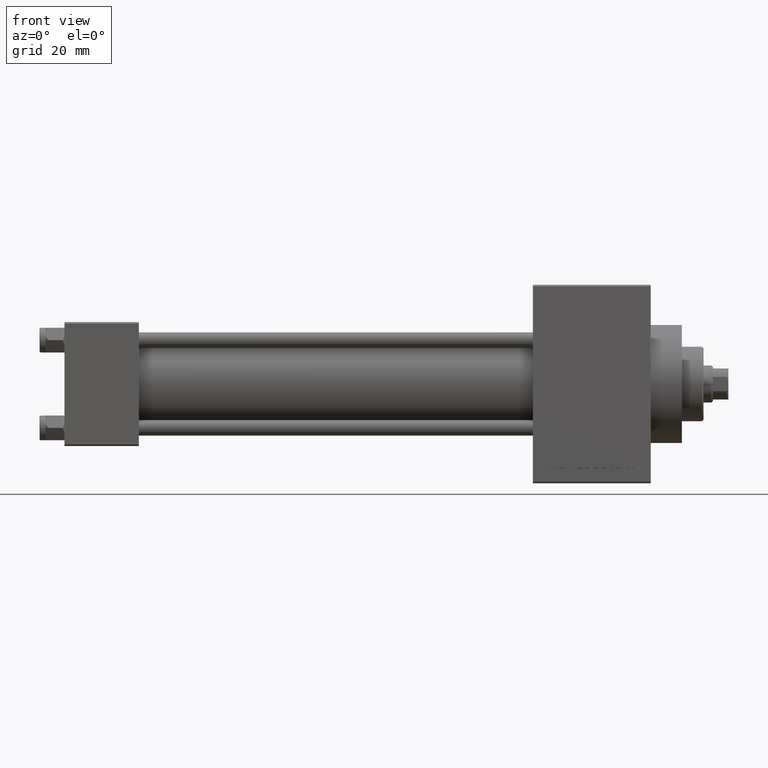
[diagram: clean part render]
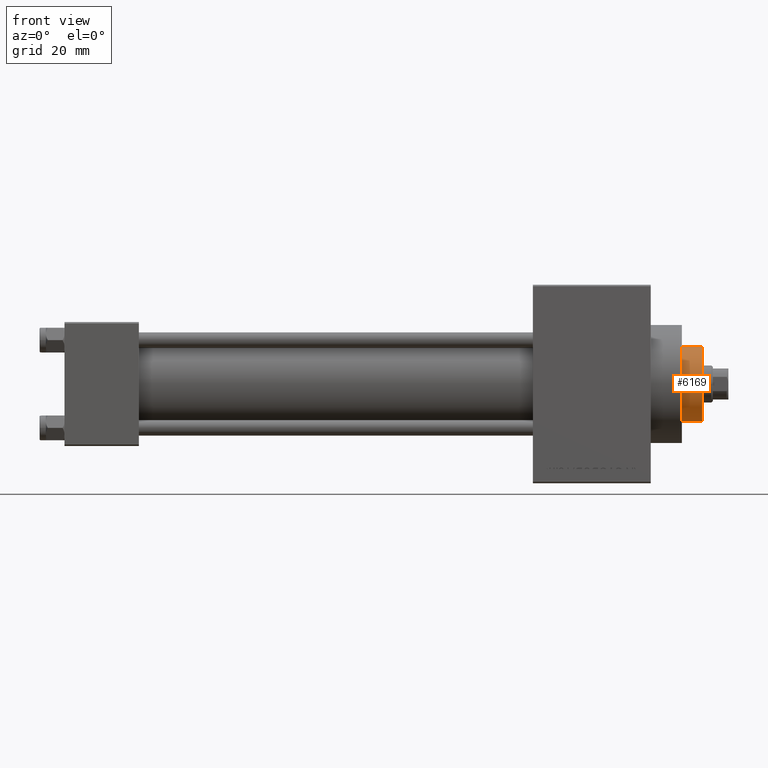
[diagram: same view with one face highlighted and labeled with its STEP entity id]
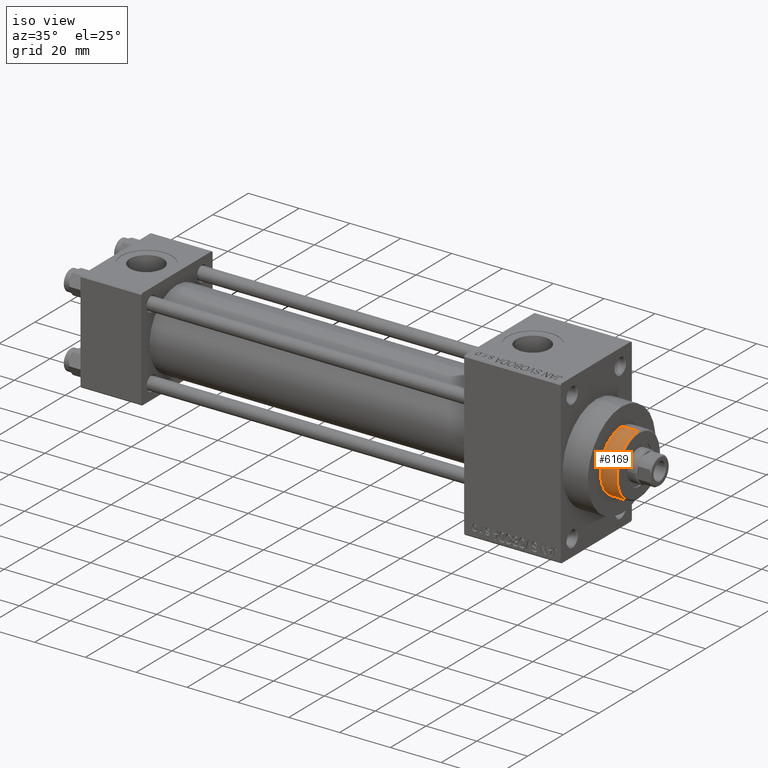
[diagram: same view with one face highlighted and labeled with its STEP entity id]
A machine part, front view. The second image highlights one B-rep face of the part: STEP entity #6169.
A second angle (iso view) of the same face is appended — the face is thin or edge-on in the first view.
In plain terms, the highlighted cylindrical surface (partial cylindrical patch) has radius 12 mm, axis along (-1, 0, 0).
Its self-contained STEP definition (entity closure, byte-faithful):
#1807 = ORIENTED_EDGE ( 'NONE', *, *, #34748, .T. ) ;
#2911 = DIRECTION ( 'NONE',  ( -1.000000000000000000, 0.000000000000000000, 0.000000000000000000 ) ) ;
#3011 = EDGE_CURVE ( 'NONE', #4678, #47378, #18109, .T. ) ;
#4678 = VERTEX_POINT ( 'NONE', #21375 ) ;
#5305 = CARTESIAN_POINT ( 'NONE',  ( 12.00000000000000178, 1.469576158976824144E-15, 43.25999999999999801 ) ) ;
#5588 = CARTESIAN_POINT ( 'NONE',  ( 12.00000000000000178, 1.469576158976824144E-15, 50.25999999999999801 ) ) ;
#5649 = LINE ( 'NONE', #20529, #12464 ) ;
#5655 = CYLINDRICAL_SURFACE ( 'NONE', #30131, 12.00000000000000178 ) ;
#6166 = CARTESIAN_POINT ( 'NONE',  ( 0.000000000000000000, 0.000000000000000000, 43.25999999999999801 ) ) ;
#6169 = ADVANCED_FACE ( 'NONE', ( #39656 ), #5655, .T. ) ;
#11188 = CARTESIAN_POINT ( 'NONE',  ( 12.00000000000000178, 1.469576158976824144E-15, 49.76000000000000512 ) ) ;
#11565 = CIRCLE ( 'NONE', #46494, 12.00000000000000178 ) ;
#12464 = VECTOR ( 'NONE', #46846, 1000.000000000000000 ) ;
#14043 = CARTESIAN_POINT ( 'NONE',  ( 0.000000000000000000, 0.000000000000000000, 50.25999999999999801 ) ) ;
#16670 = ORIENTED_EDGE ( 'NONE', *, *, #3011, .T. ) ;
#18109 = CIRCLE ( 'NONE', #37975, 12.00000000000000178 ) ;
#19252 = EDGE_LOOP ( 'NONE', ( #16670, #1807, #35322, #43311 ) ) ;
#20529 = CARTESIAN_POINT ( 'NONE',  ( -12.00000000000000178, 0.000000000000000000, 50.25999999999999801 ) ) ;
#21375 = CARTESIAN_POINT ( 'NONE',  ( -12.00000000000000178, 0.000000000000000000, 49.76000000000000512 ) ) ;
#24140 = EDGE_CURVE ( 'NONE', #40704, #29178, #11565, .T. ) ;
#25162 = LINE ( 'NONE', #5588, #37055 ) ;
#28878 = DIRECTION ( 'NONE',  ( -0.000000000000000000, -0.000000000000000000, -1.000000000000000000 ) ) ;
#29178 = VERTEX_POINT ( 'NONE', #39863 ) ;
#29204 = DIRECTION ( 'NONE',  ( -0.000000000000000000, -0.000000000000000000, -1.000000000000000000 ) ) ;
#30131 = AXIS2_PLACEMENT_3D ( 'NONE', #14043, #29204, #2911 ) ;
#33000 = DIRECTION ( 'NONE',  ( 0.000000000000000000, 0.000000000000000000, -1.000000000000000000 ) ) ;
#34748 = EDGE_CURVE ( 'NONE', #47378, #40704, #25162, .T. ) ;
#35322 = ORIENTED_EDGE ( 'NONE', *, *, #24140, .T. ) ;
#35587 = EDGE_CURVE ( 'NONE', #4678, #29178, #5649, .T. ) ;
#37055 = VECTOR ( 'NONE', #28878, 1000.000000000000000 ) ;
#37975 = AXIS2_PLACEMENT_3D ( 'NONE', #44424, #33000, #43689 ) ;
#39656 = FACE_OUTER_BOUND ( 'NONE', #19252, .T. ) ;
#39863 = CARTESIAN_POINT ( 'NONE',  ( -12.00000000000000178, 0.000000000000000000, 43.25999999999999801 ) ) ;
#40704 = VERTEX_POINT ( 'NONE', #5305 ) ;
#41650 = DIRECTION ( 'NONE',  ( 1.000000000000000000, 0.000000000000000000, 0.000000000000000000 ) ) ;
#41893 = DIRECTION ( 'NONE',  ( 0.000000000000000000, 0.000000000000000000, 1.000000000000000000 ) ) ;
#43311 = ORIENTED_EDGE ( 'NONE', *, *, #35587, .F. ) ;
#43689 = DIRECTION ( 'NONE',  ( 1.000000000000000000, 0.000000000000000000, 0.000000000000000000 ) ) ;
#44424 = CARTESIAN_POINT ( 'NONE',  ( 0.000000000000000000, 0.000000000000000000, 49.76000000000000512 ) ) ;
#46494 = AXIS2_PLACEMENT_3D ( 'NONE', #6166, #41893, #41650 ) ;
#46846 = DIRECTION ( 'NONE',  ( -0.000000000000000000, -0.000000000000000000, -1.000000000000000000 ) ) ;
#47378 = VERTEX_POINT ( 'NONE', #11188 ) ;